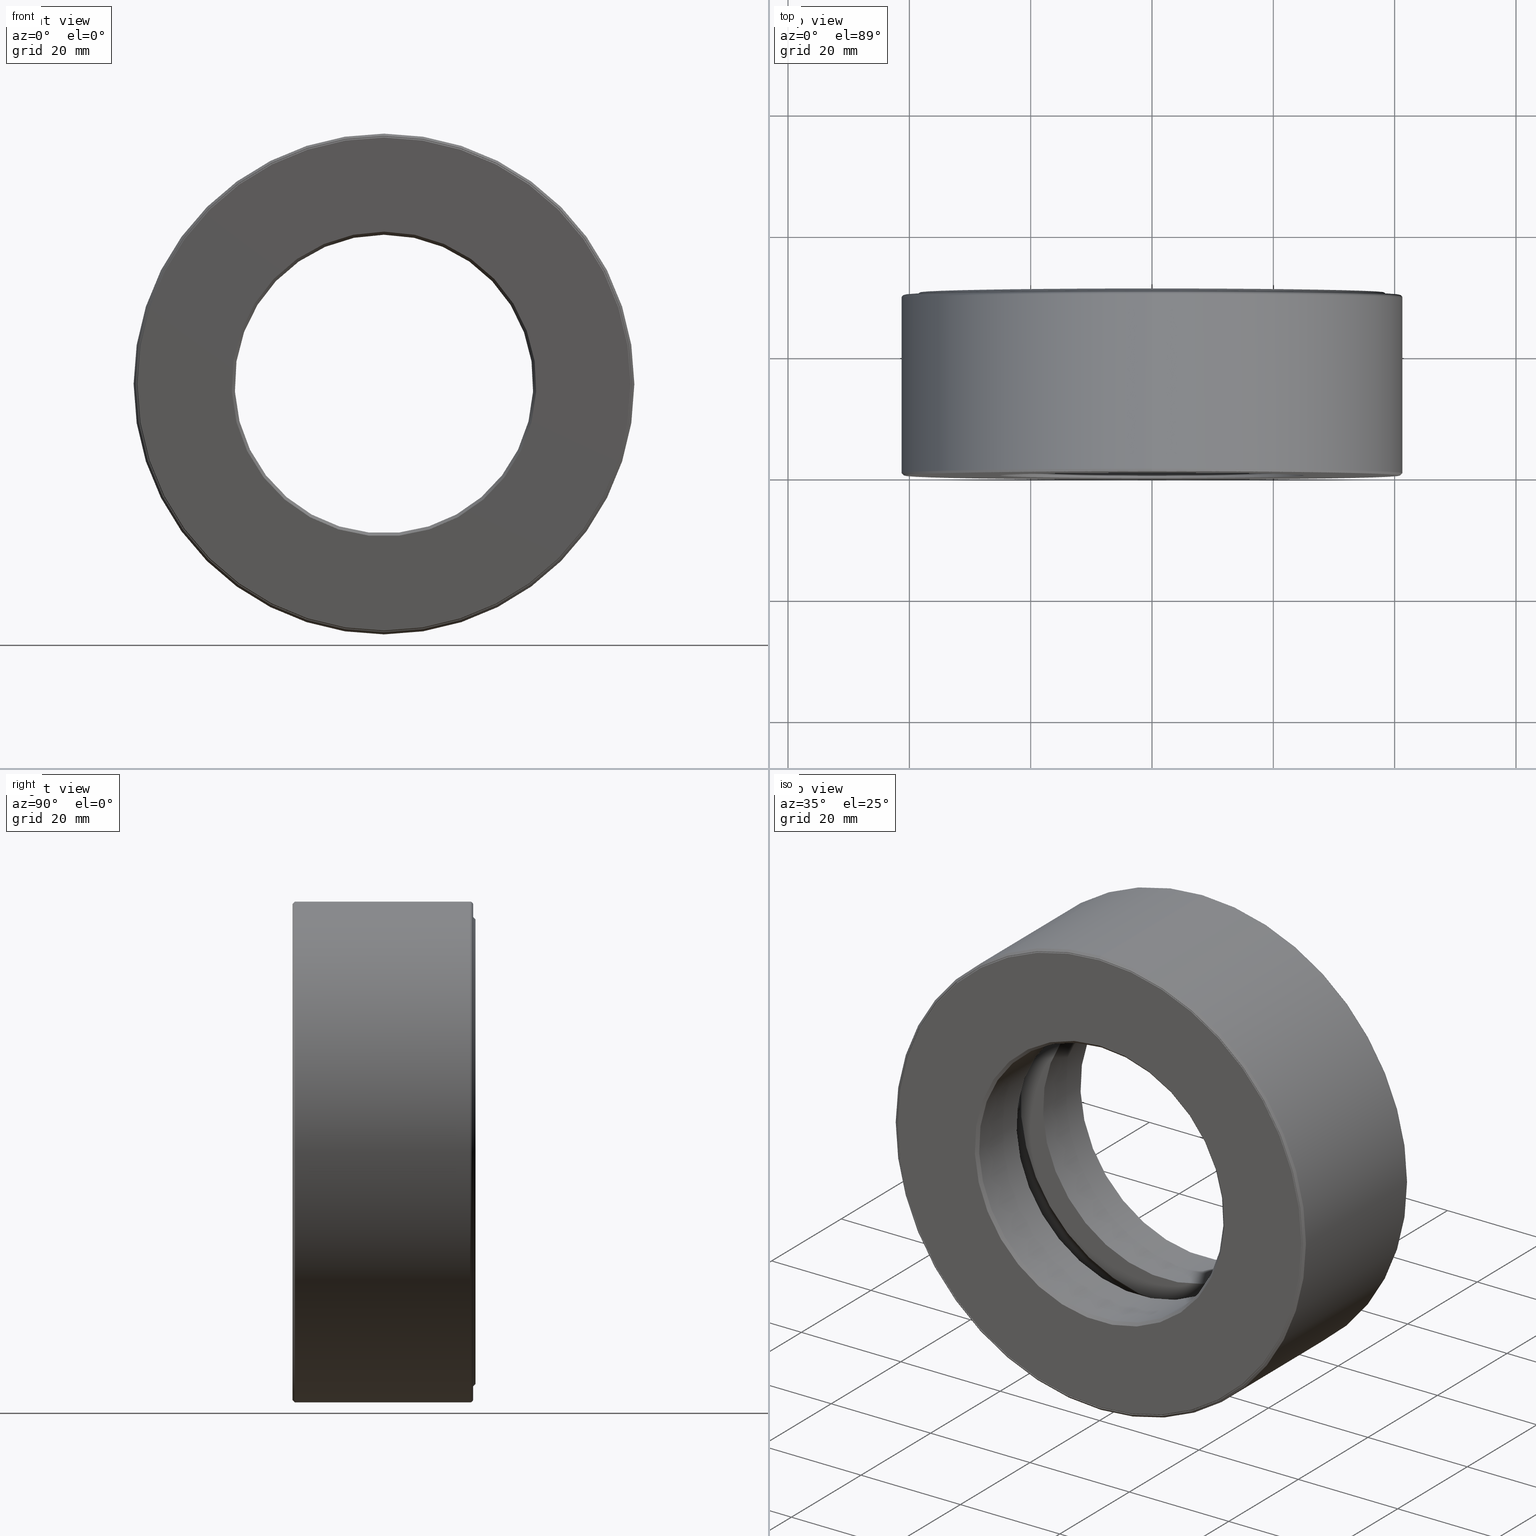
[diagram: canonical four-view strip — front | top / right | iso, engineering-drawing reading convention]
A machine part, canonical four-view strip (front | top / right | iso — engineering-drawing reading convention). The complete STEP part file that produces these views, byte-faithful:
ISO-10303-21;
HEADER;
FILE_DESCRIPTION (( 'STEP AP203' ),
    '1' );
FILE_NAME ('T-100-37.step',
    '2016-06-29T18:27:34',
    ( '' ),
    ( '' ),
    'SwSTEP 2.0',
    'SolidWorks 2016',
    '' );
FILE_SCHEMA (( 'CONFIG_CONTROL_DESIGN' ));
ENDSEC;

DATA;
#1 = DIMENSIONAL_EXPONENTS ( 1.000000000000000000, 0.0000000000000000000, 0.0000000000000000000, 0.0000000000000000000, 0.0000000000000000000, 0.0000000000000000000, 0.0000000000000000000 ) ;
#2 = MANIFOLD_SOLID_BREP ( 'Revolve2[1]', #224 ) ;
#3 = APPROVAL_DATE_TIME ( #113, #390 ) ;
#4 = DIRECTION ( 'NONE',  ( 0.0000000000000000000, 0.0000000000000000000, 1.000000000000000000 ) ) ;
#5 = DIRECTION ( 'NONE',  ( 0.0000000000000000000, 0.0000000000000000000, 1.000000000000000000 ) ) ;
#6 = EDGE_CURVE ( 'NONE', #340, #340, #236, .T. ) ;
#7 = ORIENTED_EDGE ( 'NONE', *, *, #507, .T. ) ;
#8 = CARTESIAN_POINT ( 'NONE',  ( 4.699533882082857200E-015, 0.5937500000000000000, 1.346000000000000100 ) ) ;
#9 = AXIS2_PLACEMENT_3D ( 'NONE', #125, #42, #81 ) ;
#10 = APPROVAL_DATE_TIME ( #126, #34 ) ;
#11 = FACE_OUTER_BOUND ( 'NONE', #568, .T. ) ;
#12 = EDGE_LOOP ( 'NONE', ( #604 ) ) ;
#13 = FACE_OUTER_BOUND ( 'NONE', #271, .T. ) ;
#14 = CARTESIAN_POINT ( 'NONE',  ( 0.0000000000000000000, 1.152499999999999900, 1.605000000000000000 ) ) ;
#15 = ADVANCED_FACE ( 'NONE', ( #284, #84 ), #569, .F. ) ;
#16 = CC_DESIGN_DATE_AND_TIME_ASSIGNMENT ( #190, #437, ( #90 ) ) ;
#17 = EDGE_LOOP ( 'NONE', ( #297 ) ) ;
#18 = CIRCLE ( 'NONE', #443, 1.598000000000000100 ) ;
#19 = CLOSED_SHELL ( 'NONE', ( #483, #261, #459, #269, #403, #374, #43, #351 ) ) ;
#20 = SECURITY_CLASSIFICATION_LEVEL ( 'unclassified' ) ;
#21 = CARTESIAN_POINT ( 'NONE',  ( 0.0000000000000000000, -8.750450604705842700E-017, 0.0000000000000000000 ) ) ;
#22 = AXIS2_PLACEMENT_3D ( 'NONE', #247, #209, #438 ) ;
#23 = COORDINATED_UNIVERSAL_TIME_OFFSET ( 5, 0, .BEHIND. ) ;
#24 = EDGE_LOOP ( 'NONE', ( #377 ) ) ;
#25 = ORIENTED_EDGE ( 'NONE', *, *, #145, .F. ) ;
#26 = CIRCLE ( 'NONE', #22, 0.9687500000000001100 ) ;
#27 = EDGE_LOOP ( 'NONE', ( #7 ) ) ;
#28 = DIRECTION ( 'NONE',  ( 0.0000000000000000000, -1.000000000000000000, 0.0000000000000000000 ) ) ;
#29 = FACE_BOUND ( 'NONE', #172, .T. ) ;
#30 = ORIENTED_EDGE ( 'NONE', *, *, #556, .T. ) ;
#31 = EDGE_CURVE ( 'NONE', #479, #479, #551, .T. ) ;
#32 = DIRECTION ( 'NONE',  ( 0.0000000000000000000, 0.0000000000000000000, 1.000000000000000000 ) ) ;
#33 = DIRECTION ( 'NONE',  ( 0.0000000000000000000, 0.0000000000000000000, 1.000000000000000000 ) ) ;
#34 = APPROVAL ( #538, 'UNSPECIFIED' ) ;
#35 = ORGANIZATION ( 'UNSPECIFIED', 'UNSPECIFIED', '' ) ;
#36 = DIRECTION ( 'NONE',  ( 0.0000000000000000000, 0.0000000000000000000, 1.000000000000000000 ) ) ;
#37 = ADVANCED_FACE ( 'NONE', ( #348, #574 ), #498, .F. ) ;
#38 = DIRECTION ( 'NONE',  ( 0.0000000000000000000, -1.000000000000000000, 0.0000000000000000000 ) ) ;
#39 = FACE_OUTER_BOUND ( 'NONE', #548, .T. ) ;
#40 = ORIENTED_EDGE ( 'NONE', *, *, #231, .T. ) ;
#41 = SPHERICAL_SURFACE ( 'NONE', #405, 0.2500000000000000600 ) ;
#42 = DIRECTION ( 'NONE',  ( -0.0000000000000000000, 1.000000000000000000, 0.0000000000000000000 ) ) ;
#43 = ADVANCED_FACE ( 'NONE', ( #237, #66 ), #160, .T. ) ;
#44 = CARTESIAN_POINT ( 'NONE',  ( 0.0000000000000000000, 1.187500000000000000, 1.509999999999999800 ) ) ;
#45 = DIRECTION ( 'NONE',  ( -1.000000000000000000, 0.0000000000000000000, 3.491481338843134500E-015 ) ) ;
#46 = CARTESIAN_POINT ( 'NONE',  ( 0.0000000000000000000, 0.7437500000000001300, 0.0000000000000000000 ) ) ;
#47 = CARTESIAN_POINT ( 'NONE',  ( 0.0000000000000000000, 1.099499999999999900, 1.598000000000000100 ) ) ;
#48 = EDGE_LOOP ( 'NONE', ( #382 ) ) ;
#49 = CIRCLE ( 'NONE', #314, 0.9687500000000000000 ) ;
#50 = DIRECTION ( 'NONE',  ( -0.0000000000000000000, 1.000000000000000000, -0.0000000000000000000 ) ) ;
#51 = AXIS2_PLACEMENT_3D ( 'NONE', #596, #222, #408 ) ;
#52 = EDGE_LOOP ( 'NONE', ( #542 ) ) ;
#53 = EDGE_LOOP ( 'NONE', ( #411 ) ) ;
#54 = FACE_OUTER_BOUND ( 'NONE', #448, .T. ) ;
#55 = DIRECTION ( 'NONE',  ( -0.0000000000000000000, 1.000000000000000000, -0.0000000000000000000 ) ) ;
#56 = CARTESIAN_POINT ( 'NONE',  ( 0.0000000000000000000, -8.694983911032602800E-017, 0.0000000000000000000 ) ) ;
#57 = DIRECTION ( 'NONE',  ( 0.0000000000000000000, 0.0000000000000000000, 1.000000000000000000 ) ) ;
#58 = AXIS2_PLACEMENT_3D ( 'NONE', #273, #485, #241 ) ;
#59 = ORIENTED_EDGE ( 'NONE', *, *, #599, .F. ) ;
#60 = CIRCLE ( 'NONE', #157, 1.605000000000000000 ) ;
#61 = EDGE_CURVE ( 'NONE', #467, #467, #130, .T. ) ;
#62 = LOCAL_TIME ( 14, 27, 34.00000000000000000, #23 ) ;
#63 = CC_DESIGN_PERSON_AND_ORGANIZATION_ASSIGNMENT ( #354, #107, ( #270 ) ) ;
#64 = ORIENTED_EDGE ( 'NONE', *, *, #325, .T. ) ;
#65 = EDGE_LOOP ( 'NONE', ( #503 ) ) ;
#66 = FACE_BOUND ( 'NONE', #420, .T. ) ;
#67 = CARTESIAN_POINT ( 'NONE',  ( 0.0000000000000000000, -8.643737792453333200E-017, 0.0000000000000000000 ) ) ;
#68 = ORIENTED_EDGE ( 'NONE', *, *, #556, .F. ) ;
#69 = CONICAL_SURFACE ( 'NONE', #281, 1.599999999999999600, 0.7853981633974335100 ) ;
#70 = DIRECTION ( 'NONE',  ( 0.0000000000000000000, 0.0000000000000000000, 1.000000000000000000 ) ) ;
#71 = CARTESIAN_POINT ( 'NONE',  ( 0.0000000000000000000, 1.172499999999999900, 0.0000000000000000000 ) ) ;
#72 = DIRECTION ( 'NONE',  ( 0.0000000000000000000, 0.0000000000000000000, 1.000000000000000000 ) ) ;
#73 = ADVANCED_FACE ( 'NONE', ( #13, #101 ), #429, .F. ) ;
#74 = COORDINATED_UNIVERSAL_TIME_OFFSET ( 5, 0, .BEHIND. ) ;
#75 = EDGE_LOOP ( 'NONE', ( #234 ) ) ;
#76 = CARTESIAN_POINT ( 'NONE',  ( 0.0000000000000000000, 6.829619984160658000E-017, 0.0000000000000000000 ) ) ;
#77 = EDGE_LOOP ( 'NONE', ( #369 ) ) ;
#78 = CIRCLE ( 'NONE', #51, 1.545999999999999800 ) ;
#79 = AXIS2_PLACEMENT_3D ( 'NONE', #505, #531, #201 ) ;
#80 = CARTESIAN_POINT ( 'NONE',  ( 0.0000000000000000000, 0.4437499999999998700, 0.0000000000000000000 ) ) ;
#81 = DIRECTION ( 'NONE',  ( 0.0000000000000000000, 0.0000000000000000000, 1.000000000000000000 ) ) ;
#82 = EDGE_CURVE ( 'NONE', #589, #589, #383, .T. ) ;
#83 =( CONVERSION_BASED_UNIT ( 'INCH', #196 ) LENGTH_UNIT ( ) NAMED_UNIT ( #1 ) );
#84 = FACE_OUTER_BOUND ( 'NONE', #106, .T. ) ;
#85 = ORIENTED_EDGE ( 'NONE', *, *, #545, .F. ) ;
#86 = FACE_OUTER_BOUND ( 'NONE', #358, .T. ) ;
#87 = MANIFOLD_SOLID_BREP ( 'Revolve3', #239 ) ;
#88 = DIRECTION ( 'NONE',  ( 0.0000000000000000000, 0.0000000000000000000, 1.000000000000000000 ) ) ;
#89 = VERTEX_POINT ( 'NONE', #133 ) ;
#90 = PRODUCT_DEFINITION ( 'UNKNOWN', '', #183, #465 ) ;
#91 = ADVANCED_FACE ( 'NONE', ( #39, #540 ), #337, .F. ) ;
#92 = DIRECTION ( 'NONE',  ( -0.0000000000000000000, 1.000000000000000000, -0.0000000000000000000 ) ) ;
#93 = EDGE_CURVE ( 'NONE', #285, #285, #78, .T. ) ;
#94 = LOCAL_TIME ( 14, 27, 34.00000000000000000, #74 ) ;
#95 = DIRECTION ( 'NONE',  ( 0.0000000000000000000, 0.0000000000000000000, 1.000000000000000000 ) ) ;
#96 = CARTESIAN_POINT ( 'NONE',  ( 0.0000000000000000000, 0.0000000000000000000, 0.0000000000000000000 ) ) ;
#97 = ORIENTED_EDGE ( 'NONE', *, *, #105, .T. ) ;
#98 = CC_DESIGN_APPROVAL ( #329, ( #270 ) ) ;
#99 = COORDINATED_UNIVERSAL_TIME_OFFSET ( 5, 0, .BEHIND. ) ;
#100 = CARTESIAN_POINT ( 'NONE',  ( 0.0000000000000000000, 0.005000000000000418200, 0.0000000000000000000 ) ) ;
#101 = FACE_OUTER_BOUND ( 'NONE', #254, .T. ) ;
#102 = EDGE_LOOP ( 'NONE', ( #533 ) ) ;
#103 = VERTEX_POINT ( 'NONE', #468 ) ;
#104 = CARTESIAN_POINT ( 'NONE',  ( 0.0000000000000000000, 0.7437500000000001300, 1.146000000000000400 ) ) ;
#105 = EDGE_CURVE ( 'NONE', #515, #515, #111, .T. ) ;
#106 = EDGE_LOOP ( 'NONE', ( #143 ) ) ;
#107 = PERSON_AND_ORGANIZATION_ROLE ( 'classification_officer' ) ;
#108 = AXIS2_PLACEMENT_3D ( 'NONE', #186, #188, #167 ) ;
#109 = CARTESIAN_POINT ( 'NONE',  ( 0.0000000000000000000, 1.152499999999999900, 0.0000000000000000000 ) ) ;
#110 = FACE_OUTER_BOUND ( 'NONE', #524, .T. ) ;
#111 = CIRCLE ( 'NONE', #252, 1.545999999999999800 ) ;
#112 = CC_DESIGN_APPROVAL ( #34, ( #90 ) ) ;
#113 = DATE_AND_TIME ( #527, #62 ) ;
#114 = PLANE ( 'NONE',  #79 ) ;
#115 = DIRECTION ( 'NONE',  ( 0.0000000000000000000, 0.0000000000000000000, 1.000000000000000000 ) ) ;
#116 = ORIENTED_EDGE ( 'NONE', *, *, #289, .T. ) ;
#117 = EDGE_LOOP ( 'NONE', ( #342 ) ) ;
#118 = DIRECTION ( 'NONE',  ( -0.0000000000000000000, 1.000000000000000000, -0.0000000000000000000 ) ) ;
#119 = DIRECTION ( 'NONE',  ( 0.0000000000000000000, -0.0000000000000000000, -1.000000000000000000 ) ) ;
#120 = DIRECTION ( 'NONE',  ( -0.0000000000000000000, 1.000000000000000000, -0.0000000000000000000 ) ) ;
#121 = DIRECTION ( 'NONE',  ( -0.0000000000000000000, 1.000000000000000000, -0.0000000000000000000 ) ) ;
#122 = PLANE ( 'NONE',  #446 ) ;
#123 = AXIS2_PLACEMENT_3D ( 'NONE', #175, #262, #33 ) ;
#124 = PRODUCT_DEFINITION_SHAPE ( 'NONE', 'NONE',  #90 ) ;
#125 = CARTESIAN_POINT ( 'NONE',  ( -1.977206003405029600E-032, -9.070589041463374400E-018, 0.0000000000000000000 ) ) ;
#126 = DATE_AND_TIME ( #334, #427 ) ;
#127 = CARTESIAN_POINT ( 'NONE',  ( 0.0000000000000000000, 0.5937500000000000000, 0.0000000000000000000 ) ) ;
#128 = FACE_BOUND ( 'NONE', #192, .T. ) ;
#129 = DIRECTION ( 'NONE',  ( 0.0000000000000000000, -1.000000000000000000, 0.0000000000000000000 ) ) ;
#130 = CIRCLE ( 'NONE', #587, 1.624999999999999800 ) ;
#131 = CARTESIAN_POINT ( 'NONE',  ( 0.0000000000000000000, 1.152499999999999900, 1.625000000000000000 ) ) ;
#132 = DIRECTION ( 'NONE',  ( -0.0000000000000000000, 1.000000000000000000, -0.0000000000000000000 ) ) ;
#133 = CARTESIAN_POINT ( 'NONE',  ( 0.0000000000000000000, 0.4437499999999998700, 1.146000000000000400 ) ) ;
#134 = DIRECTION ( 'NONE',  ( 1.000000000000000000, 0.0000000000000000000, 0.0000000000000000000 ) ) ;
#135 = EDGE_CURVE ( 'NONE', #525, #525, #298, .T. ) ;
#136 = CARTESIAN_POINT ( 'NONE',  ( 0.0000000000000000000, 6.829619984160658000E-017, 0.9887500000000002400 ) ) ;
#137 = ADVANCED_FACE ( 'NONE', ( ), #41, .T. ) ;
#138 = EDGE_LOOP ( 'NONE', ( #332 ) ) ;
#139 = TOROIDAL_SURFACE ( 'NONE', #484, 1.605000000000000000, 0.02000000000000005900 ) ;
#140 = CARTESIAN_POINT ( 'NONE',  ( 0.0000000000000000000, 0.4437499999999997600, 0.0000000000000000000 ) ) ;
#141 = PERSON_AND_ORGANIZATION ( #230, #35 ) ;
#142 = CIRCLE ( 'NONE', #345, 1.610000000000000100 ) ;
#143 = ORIENTED_EDGE ( 'NONE', *, *, #386, .T. ) ;
#144 = CYLINDRICAL_SURFACE ( 'NONE', #453, 0.9687500000000001100 ) ;
#145 = EDGE_CURVE ( 'NONE', #242, #242, #529, .T. ) ;
#146 = DIRECTION ( 'NONE',  ( -0.0000000000000000000, 1.000000000000000000, -0.0000000000000000000 ) ) ;
#147 = CARTESIAN_POINT ( 'NONE',  ( 0.0000000000000000000, 1.172499999999999900, 1.545000000000000200 ) ) ;
#148 = CC_DESIGN_PERSON_AND_ORGANIZATION_ASSIGNMENT ( #156, #393, ( #90 ) ) ;
#149 = MANIFOLD_SOLID_BREP ( 'BALLS[2]', #287 ) ;
#150 = MECHANICAL_CONTEXT ( 'NONE', #244, 'mechanical' ) ;
#151 = ORIENTED_EDGE ( 'NONE', *, *, #545, .T. ) ;
#152 = FACE_OUTER_BOUND ( 'NONE', #402, .T. ) ;
#153 = ORIENTED_EDGE ( 'NONE', *, *, #500, .T. ) ;
#154 = AXIS2_PLACEMENT_3D ( 'NONE', #227, #92, #422 ) ;
#155 = APPROVAL_STATUS ( 'not_yet_approved' ) ;
#156 = PERSON_AND_ORGANIZATION ( #230, #35 ) ;
#157 = AXIS2_PLACEMENT_3D ( 'NONE', #56, #562, #324 ) ;
#158 = FACE_OUTER_BOUND ( 'NONE', #440, .T. ) ;
#159 = ORIENTED_EDGE ( 'NONE', *, *, #82, .F. ) ;
#160 = CONICAL_SURFACE ( 'NONE', #189, 1.509999999999999800, 0.7853981633974490600 ) ;
#161 = VERTEX_POINT ( 'NONE', #603 ) ;
#162 = DIRECTION ( 'NONE',  ( 0.0000000000000000000, -0.0000000000000000000, -1.000000000000000000 ) ) ;
#163 = AXIS2_PLACEMENT_3D ( 'NONE', #127, #121, #36 ) ;
#164 = EDGE_LOOP ( 'NONE', ( #511 ) ) ;
#165 = CONICAL_SURFACE ( 'NONE', #570, 0.9687500000000001100, 0.7853981633974415100 ) ;
#166 = DIRECTION ( 'NONE',  ( -0.0000000000000000000, 1.000000000000000000, -0.0000000000000000000 ) ) ;
#167 = DIRECTION ( 'NONE',  ( 0.0000000000000000000, 0.0000000000000000000, 1.000000000000000000 ) ) ;
#168 = AXIS2_PLACEMENT_3D ( 'NONE', #424, #346, #590 ) ;
#169 = DIRECTION ( 'NONE',  ( 0.0000000000000000000, -1.000000000000000000, 0.0000000000000000000 ) ) ;
#170 = DIRECTION ( 'NONE',  ( 0.0000000000000000000, 0.0000000000000000000, 1.000000000000000000 ) ) ;
#171 = PLANE ( 'NONE',  #476 ) ;
#172 = EDGE_LOOP ( 'NONE', ( #97 ) ) ;
#173 = EDGE_LOOP ( 'NONE', ( #40 ) ) ;
#174 = FACE_BOUND ( 'NONE', #17, .T. ) ;
#175 = CARTESIAN_POINT ( 'NONE',  ( 0.0000000000000000000, 0.7437500000000001300, 0.0000000000000000000 ) ) ;
#176 = CARTESIAN_POINT ( 'NONE',  ( 0.0000000000000000000, 1.187500000000000000, 0.0000000000000000000 ) ) ;
#177 = AXIS2_PLACEMENT_3D ( 'NONE', #243, #169, #326 ) ;
#178 = DIRECTION ( 'NONE',  ( 0.0000000000000000000, 0.0000000000000000000, -1.000000000000000000 ) ) ;
#179 = CARTESIAN_POINT ( 'NONE',  ( 0.0000000000000000000, 0.4437499999999997600, 1.545999999999999800 ) ) ;
#180 = PLANE ( 'NONE',  #526 ) ;
#181 = ADVANCED_FACE ( 'NONE', ( #370, #174 ), #114, .F. ) ;
#182 = DIRECTION ( 'NONE',  ( 0.0000000000000000000, -1.000000000000000000, 0.0000000000000000000 ) ) ;
#183 = PRODUCT_DEFINITION_FORMATION_WITH_SPECIFIED_SOURCE ( 'ANY', '', #256, .NOT_KNOWN. ) ;
#184 = ORIENTED_EDGE ( 'NONE', *, *, #231, .F. ) ;
#185 = CIRCLE ( 'NONE', #123, 1.146000000000000400 ) ;
#186 = CARTESIAN_POINT ( 'NONE',  ( 0.0000000000000000000, 1.099499999999999900, 0.0000000000000000000 ) ) ;
#187 = CARTESIAN_POINT ( 'NONE',  ( 0.0000000000000000000, 1.152499999999999900, 1.545000000000000200 ) ) ;
#188 = DIRECTION ( 'NONE',  ( -0.0000000000000000000, 1.000000000000000000, -0.0000000000000000000 ) ) ;
#189 = AXIS2_PLACEMENT_3D ( 'NONE', #461, #552, #178 ) ;
#190 = DATE_AND_TIME ( #293, #279 ) ;
#191 = EDGE_LOOP ( 'NONE', ( #349 ) ) ;
#192 = EDGE_LOOP ( 'NONE', ( #25 ) ) ;
#193 = ORIENTED_EDGE ( 'NONE', *, *, #500, .F. ) ;
#194 = CC_DESIGN_PERSON_AND_ORGANIZATION_ASSIGNMENT ( #547, #385, ( #256 ) ) ;
#195 = CARTESIAN_POINT ( 'NONE',  ( 0.0000000000000000000, -8.643737792453333200E-017, 1.599999999999999600 ) ) ;
#196 = LENGTH_MEASURE_WITH_UNIT ( LENGTH_MEASURE( 0.02539999999999999900 ), #316 );
#197 = CARTESIAN_POINT ( 'NONE',  ( 0.0000000000000000000, -8.694983911032602800E-017, 1.605000000000000000 ) ) ;
#198 = FACE_BOUND ( 'NONE', #138, .T. ) ;
#199 = EDGE_LOOP ( 'NONE', ( #193 ) ) ;
#200 = CIRCLE ( 'NONE', #359, 0.9687500000000001100 ) ;
#201 = DIRECTION ( 'NONE',  ( 0.0000000000000000000, 0.0000000000000000000, 1.000000000000000000 ) ) ;
#202 = AXIS2_PLACEMENT_3D ( 'NONE', #555, #373, #321 ) ;
#203 = APPLICATION_PROTOCOL_DEFINITION ( 'international standard', 'config_control_design', 1994, #439 ) ;
#204 = ADVANCED_FACE ( 'NONE', ( #396, #249 ), #571, .F. ) ;
#205 = ORIENTED_EDGE ( 'NONE', *, *, #105, .F. ) ;
#206 = APPLICATION_PROTOCOL_DEFINITION ( 'international standard', 'config_control_design', 1994, #244 ) ;
#207 = CLOSED_SHELL ( 'NONE', ( #219 ) ) ;
#208 = AXIS2_PLACEMENT_3D ( 'NONE', #469, #519, #229 ) ;
#209 = DIRECTION ( 'NONE',  ( -0.0000000000000000000, 1.000000000000000000, -0.0000000000000000000 ) ) ;
#210 = CYLINDRICAL_SURFACE ( 'NONE', #595, 1.624999999999999800 ) ;
#211 = EDGE_LOOP ( 'NONE', ( #68 ) ) ;
#212 = CONICAL_SURFACE ( 'NONE', #233, 0.9687500000000000000, 0.7853981633974431700 ) ;
#213 = CC_DESIGN_APPROVAL ( #390, ( #183 ) ) ;
#214 = DIRECTION ( 'NONE',  ( 0.0000000000000000000, 0.0000000000000000000, 1.000000000000000000 ) ) ;
#215 = VERTEX_POINT ( 'NONE', #187 ) ;
#216 = ADVANCED_FACE ( 'NONE', ( ), #528, .T. ) ;
#217 = AXIS2_PLACEMENT_3D ( 'NONE', #470, #333, #406 ) ;
#218 = EDGE_LOOP ( 'NONE', ( #395 ) ) ;
#219 = ADVANCED_FACE ( 'NONE', ( ), #442, .T. ) ;
#220 = DIRECTION ( 'NONE',  ( -0.0000000000000000000, 1.000000000000000000, -0.0000000000000000000 ) ) ;
#221 = VERTEX_POINT ( 'NONE', #197 ) ;
#222 = DIRECTION ( 'NONE',  ( -0.0000000000000000000, 1.000000000000000000, -0.0000000000000000000 ) ) ;
#223 = CIRCLE ( 'NONE', #245, 1.605000000000000000 ) ;
#224 = CLOSED_SHELL ( 'NONE', ( #73, #364, #317, #181, #15, #204, #508, #258, #516, #602, #37, #501, #480, #414, #91, #458 ) ) ;
#225 = FACE_BOUND ( 'NONE', #24, .T. ) ;
#226 = CARTESIAN_POINT ( 'NONE',  ( -1.010132666352421300E-032, -8.722717257869222100E-017, 0.0000000000000000000 ) ) ;
#227 = CARTESIAN_POINT ( 'NONE',  ( 0.0000000000000000000, 1.152499999999999900, 0.0000000000000000000 ) ) ;
#228 = CARTESIAN_POINT ( 'NONE',  ( 0.0000000000000000000, 0.7437500000000001300, 1.598000000000000100 ) ) ;
#229 = DIRECTION ( 'NONE',  ( -1.000000000000000000, 0.0000000000000000000, 6.982962677686269100E-015 ) ) ;
#230 = PERSON ( 'UNSPECIFIED', 'UNSPECIFIED', 'UNSPECIFIED', ('UNSPECIFIED'), ('UNSPECIFIED'), ('UNSPECIFIED') ) ;
#231 = EDGE_CURVE ( 'NONE', #360, #360, #584, .T. ) ;
#232 = VERTEX_POINT ( 'NONE', #228 ) ;
#233 = AXIS2_PLACEMENT_3D ( 'NONE', #367, #315, #506 ) ;
#234 = ORIENTED_EDGE ( 'NONE', *, *, #532, .F. ) ;
#235 = ORIENTED_EDGE ( 'NONE', *, *, #343, .F. ) ;
#236 = CIRCLE ( 'NONE', #154, 1.625000000000000000 ) ;
#237 = FACE_OUTER_BOUND ( 'NONE', #218, .T. ) ;
#238 = CC_DESIGN_PERSON_AND_ORGANIZATION_ASSIGNMENT ( #489, #290, ( #183 ) ) ;
#239 = CLOSED_SHELL ( 'NONE', ( #216 ) ) ;
#240 = AXIS2_PLACEMENT_3D ( 'NONE', #71, #118, #32 ) ;
#241 = DIRECTION ( 'NONE',  ( 1.000000000000000000, 0.0000000000000000000, 0.0000000000000000000 ) ) ;
#242 = VERTEX_POINT ( 'NONE', #518 ) ;
#243 = CARTESIAN_POINT ( 'NONE',  ( 0.0000000000000000000, 1.172499999999999900, 0.0000000000000000000 ) ) ;
#244 = APPLICATION_CONTEXT ( 'configuration controlled 3d designs of mechanical parts and assemblies' ) ;
#245 = AXIS2_PLACEMENT_3D ( 'NONE', #140, #278, #379 ) ;
#246 = APPROVAL_DATE_TIME ( #580, #329 ) ;
#247 = CARTESIAN_POINT ( 'NONE',  ( 0.0000000000000000000, 0.7437500000000001300, 0.0000000000000000000 ) ) ;
#248 = CYLINDRICAL_SURFACE ( 'NONE', #380, 1.605000000000000000 ) ;
#249 = FACE_OUTER_BOUND ( 'NONE', #400, .T. ) ;
#250 = CARTESIAN_POINT ( 'NONE',  ( 0.0000000000000000000, 1.172499999999999900, 0.0000000000000000000 ) ) ;
#251 = DIRECTION ( 'NONE',  ( -0.0000000000000000000, 1.000000000000000000, -0.0000000000000000000 ) ) ;
#252 = AXIS2_PLACEMENT_3D ( 'NONE', #259, #120, #600 ) ;
#253 = DIRECTION ( 'NONE',  ( -0.0000000000000000000, 1.000000000000000000, -0.0000000000000000000 ) ) ;
#254 = EDGE_LOOP ( 'NONE', ( #274 ) ) ;
#255 = CIRCLE ( 'NONE', #413, 1.509999999999999800 ) ;
#256 = PRODUCT ( 'T-100-37', 'T-100-37', '', ( #150 ) ) ;
#257 = AXIS2_PLACEMENT_3D ( 'NONE', #353, #404, #214 ) ;
#258 = ADVANCED_FACE ( 'NONE', ( #409, #394 ), #210, .T. ) ;
#259 = CARTESIAN_POINT ( 'NONE',  ( 0.0000000000000000000, 0.7437500000000001300, 0.0000000000000000000 ) ) ;
#260 = DIRECTION ( 'NONE',  ( 0.0000000000000000000, 0.0000000000000000000, 1.000000000000000000 ) ) ;
#261 = ADVANCED_FACE ( 'NONE', ( #54, #110 ), #605, .F. ) ;
#262 = DIRECTION ( 'NONE',  ( -0.0000000000000000000, 1.000000000000000000, -0.0000000000000000000 ) ) ;
#263 = DIRECTION ( 'NONE',  ( -0.0000000000000000000, 1.000000000000000000, -0.0000000000000000000 ) ) ;
#264 = FACE_OUTER_BOUND ( 'NONE', #466, .T. ) ;
#265 = ADVANCED_FACE ( 'NONE', ( ), #311, .T. ) ;
#266 = ORIENTED_EDGE ( 'NONE', *, *, #578, .F. ) ;
#267 = FACE_OUTER_BOUND ( 'NONE', #492, .T. ) ;
#268 = CARTESIAN_POINT ( 'NONE',  ( 0.0000000000000000000, 1.152499999999999900, 0.0000000000000000000 ) ) ;
#269 = ADVANCED_FACE ( 'NONE', ( #267, #282 ), #144, .F. ) ;
#270 = SECURITY_CLASSIFICATION ( '', '', #20 ) ;
#271 = EDGE_LOOP ( 'NONE', ( #303 ) ) ;
#272 = FACE_OUTER_BOUND ( 'NONE', #535, .T. ) ;
#273 = CARTESIAN_POINT ( 'NONE',  ( 0.0000000000000000000, 0.0000000000000000000, 0.0000000000000000000 ) ) ;
#274 = ORIENTED_EDGE ( 'NONE', *, *, #93, .T. ) ;
#275 = DIRECTION ( 'NONE',  ( 0.0000000000000000000, 0.0000000000000000000, 1.000000000000000000 ) ) ;
#276 = CARTESIAN_POINT ( 'NONE',  ( -1.346000000000000100, 0.5937500000000000000, 0.0000000000000000000 ) ) ;
#277 = AXIS2_PLACEMENT_3D ( 'NONE', #560, #50, #425 ) ;
#278 = DIRECTION ( 'NONE',  ( -0.0000000000000000000, 1.000000000000000000, -0.0000000000000000000 ) ) ;
#279 = LOCAL_TIME ( 14, 27, 34.00000000000000000, #565 ) ;
#280 = CARTESIAN_POINT ( 'NONE',  ( 0.0000000000000000000, 0.0000000000000000000, 0.0000000000000000000 ) ) ;
#281 = AXIS2_PLACEMENT_3D ( 'NONE', #452, #220, #260 ) ;
#282 = FACE_OUTER_BOUND ( 'NONE', #322, .T. ) ;
#283 = ORIENTED_EDGE ( 'NONE', *, *, #309, .F. ) ;
#284 = FACE_OUTER_BOUND ( 'NONE', #417, .T. ) ;
#285 = VERTEX_POINT ( 'NONE', #179 ) ;
#286 = DIRECTION ( 'NONE',  ( -0.0000000000000000000, 1.000000000000000000, -0.0000000000000000000 ) ) ;
#287 = CLOSED_SHELL ( 'NONE', ( #265 ) ) ;
#288 = FACE_OUTER_BOUND ( 'NONE', #102, .T. ) ;
#289 = EDGE_CURVE ( 'NONE', #582, #582, #462, .T. ) ;
#290 = PERSON_AND_ORGANIZATION_ROLE ( 'creator' ) ;
#291 = CARTESIAN_POINT ( 'NONE',  ( 0.0000000000000000000, 1.187500000000000000, 0.0000000000000000000 ) ) ;
#292 = CC_DESIGN_PERSON_AND_ORGANIZATION_ASSIGNMENT ( #141, #495, ( #183 ) ) ;
#293 = CALENDAR_DATE ( 2016, 29, 6 ) ;
#294 = DIRECTION ( 'NONE',  ( -0.0000000000000000000, 1.000000000000000000, -0.0000000000000000000 ) ) ;
#295 = DIRECTION ( 'NONE',  ( 0.0000000000000000000, 0.0000000000000000000, 1.000000000000000000 ) ) ;
#296 = EDGE_LOOP ( 'NONE', ( #184 ) ) ;
#297 = ORIENTED_EDGE ( 'NONE', *, *, #567, .T. ) ;
#298 = CIRCLE ( 'NONE', #240, 1.605000000000000000 ) ;
#299 = AXIS2_PLACEMENT_3D ( 'NONE', #306, #445, #301 ) ;
#300 = APPROVAL_PERSON_ORGANIZATION ( #496, #390, #494 ) ;
#301 = DIRECTION ( 'NONE',  ( 0.0000000000000000000, 0.0000000000000000000, 1.000000000000000000 ) ) ;
#302 = DIRECTION ( 'NONE',  ( -0.0000000000000000000, 1.000000000000000000, -0.0000000000000000000 ) ) ;
#303 = ORIENTED_EDGE ( 'NONE', *, *, #451, .F. ) ;
#304 = CIRCLE ( 'NONE', #305, 1.605000000000000000 ) ;
#305 = AXIS2_PLACEMENT_3D ( 'NONE', #100, #336, #520 ) ;
#306 = CARTESIAN_POINT ( 'NONE',  ( 0.0000000000000000000, 0.0000000000000000000, 0.0000000000000000000 ) ) ;
#307 = DIRECTION ( 'NONE',  ( 0.0000000000000000000, 0.0000000000000000000, 1.000000000000000000 ) ) ;
#308 = DIRECTION ( 'NONE',  ( 1.000000000000000000, 0.0000000000000000000, -1.047444401652940000E-014 ) ) ;
#309 = EDGE_CURVE ( 'NONE', #161, #161, #26, .T. ) ;
#310 = ORIENTED_EDGE ( 'NONE', *, *, #567, .F. ) ;
#311 = SPHERICAL_SURFACE ( 'NONE', #208, 0.2500000000000000600 ) ;
#312 = DIRECTION ( 'NONE',  ( 0.0000000000000000000, 0.0000000000000000000, 1.000000000000000000 ) ) ;
#313 = CARTESIAN_POINT ( 'NONE',  ( 0.0000000000000000000, 0.4437499999999998700, 0.0000000000000000000 ) ) ;
#314 = AXIS2_PLACEMENT_3D ( 'NONE', #375, #286, #5 ) ;
#315 = DIRECTION ( 'NONE',  ( 0.0000000000000000000, -1.000000000000000000, 0.0000000000000000000 ) ) ;
#316 =( LENGTH_UNIT ( ) NAMED_UNIT ( * ) SI_UNIT ( $, .METRE. ) );
#317 = ADVANCED_FACE ( 'NONE', ( #539, #158 ), #248, .F. ) ;
#318 = CARTESIAN_POINT ( 'NONE',  ( 0.0000000000000000000, 0.01499999999999997700, 0.0000000000000000000 ) ) ;
#319 = FACE_OUTER_BOUND ( 'NONE', #387, .T. ) ;
#320 = CARTESIAN_POINT ( 'NONE',  ( 0.0000000000000000000, 1.167499999999999500, 0.9687500000000001100 ) ) ;
#321 = DIRECTION ( 'NONE',  ( 0.0000000000000000000, 0.0000000000000000000, 1.000000000000000000 ) ) ;
#322 = EDGE_LOOP ( 'NONE', ( #283 ) ) ;
#323 = FACE_BOUND ( 'NONE', #77, .T. ) ;
#324 = DIRECTION ( 'NONE',  ( 0.0000000000000000000, 0.0000000000000000000, 1.000000000000000000 ) ) ;
#325 = EDGE_CURVE ( 'NONE', #103, #103, #223, .T. ) ;
#326 = DIRECTION ( 'NONE',  ( 0.0000000000000000000, -0.0000000000000000000, -1.000000000000000000 ) ) ;
#327 = VERTEX_POINT ( 'NONE', #530 ) ;
#328 = DIRECTION ( 'NONE',  ( -3.491481338843134500E-015, 0.0000000000000000000, -1.000000000000000000 ) ) ;
#329 = APPROVAL ( #435, 'UNSPECIFIED' ) ;
#330 = DIRECTION ( 'NONE',  ( 0.0000000000000000000, 0.0000000000000000000, 1.000000000000000000 ) ) ;
#331 = ORIENTED_EDGE ( 'NONE', *, *, #61, .T. ) ;
#332 = ORIENTED_EDGE ( 'NONE', *, *, #93, .F. ) ;
#333 = DIRECTION ( 'NONE',  ( -0.0000000000000000000, 1.000000000000000000, -0.0000000000000000000 ) ) ;
#334 = CALENDAR_DATE ( 2016, 29, 6 ) ;
#335 = AXIS2_PLACEMENT_3D ( 'NONE', #8, #45, #328 ) ;
#336 = DIRECTION ( 'NONE',  ( -0.0000000000000000000, 1.000000000000000000, -0.0000000000000000000 ) ) ;
#337 = CYLINDRICAL_SURFACE ( 'NONE', #217, 0.9687500000000001100 ) ;
#338 = ORIENTED_EDGE ( 'NONE', *, *, #507, .F. ) ;
#339 = FACE_OUTER_BOUND ( 'NONE', #199, .T. ) ;
#340 = VERTEX_POINT ( 'NONE', #131 ) ;
#341 = AXIS2_PLACEMENT_3D ( 'NONE', #597, #38, #119 ) ;
#342 = ORIENTED_EDGE ( 'NONE', *, *, #289, .F. ) ;
#343 = EDGE_CURVE ( 'NONE', #397, #397, #142, .T. ) ;
#344 = APPROVAL_ROLE ( '' ) ;
#345 = AXIS2_PLACEMENT_3D ( 'NONE', #21, #302, #295 ) ;
#346 = DIRECTION ( 'NONE',  ( -0.0000000000000000000, 1.000000000000000000, -0.0000000000000000000 ) ) ;
#347 = DATE_AND_TIME ( #509, #477 ) ;
#348 = FACE_OUTER_BOUND ( 'NONE', #211, .T. ) ;
#349 = ORIENTED_EDGE ( 'NONE', *, *, #6, .T. ) ;
#350 = FACE_BOUND ( 'NONE', #454, .T. ) ;
#351 = ADVANCED_FACE ( 'NONE', ( #319, #264 ), #447, .T. ) ;
#352 = DIRECTION ( 'NONE',  ( -0.0000000000000000000, 1.000000000000000000, 0.0000000000000000000 ) ) ;
#353 = CARTESIAN_POINT ( 'NONE',  ( 0.0000000000000000000, -8.750450604705842700E-017, 0.0000000000000000000 ) ) ;
#354 = PERSON_AND_ORGANIZATION ( #230, #35 ) ;
#355 = DIRECTION ( 'NONE',  ( 1.047444401652940000E-014, 0.0000000000000000000, 1.000000000000000000 ) ) ;
#356 = ORIENTED_EDGE ( 'NONE', *, *, #488, .F. ) ;
#357 = DIRECTION ( 'NONE',  ( 0.0000000000000000000, 0.0000000000000000000, 1.000000000000000000 ) ) ;
#358 = EDGE_LOOP ( 'NONE', ( #521 ) ) ;
#359 = AXIS2_PLACEMENT_3D ( 'NONE', #362, #146, #573 ) ;
#360 = VERTEX_POINT ( 'NONE', #478 ) ;
#361 = CARTESIAN_POINT ( 'NONE',  ( -1.409860164624857200E-014, 0.5937500000000000000, -1.346000000000000100 ) ) ;
#362 = CARTESIAN_POINT ( 'NONE',  ( 0.0000000000000000000, 1.167499999999999500, 0.0000000000000000000 ) ) ;
#363 = DIRECTION ( 'NONE',  ( 0.0000000000000000000, -0.0000000000000000000, -1.000000000000000000 ) ) ;
#364 = ADVANCED_FACE ( 'NONE', ( #198, #512 ), #180, .F. ) ;
#365 = SHAPE_DEFINITION_REPRESENTATION ( #124, #486 ) ;
#366 = PLANE ( 'NONE',  #541 ) ;
#367 = CARTESIAN_POINT ( 'NONE',  ( 0.0000000000000000000, 0.02000000000000046900, 0.0000000000000000000 ) ) ;
#368 = FACE_BOUND ( 'NONE', #296, .T. ) ;
#369 = ORIENTED_EDGE ( 'NONE', *, *, #31, .T. ) ;
#370 = FACE_OUTER_BOUND ( 'NONE', #117, .T. ) ;
#371 = CARTESIAN_POINT ( 'NONE',  ( 0.0000000000000000000, 0.02000000000000046900, 0.9687500000000000000 ) ) ;
#372 = CARTESIAN_POINT ( 'NONE',  ( 0.0000000000000000000, -8.750450604705842700E-017, 1.610000000000000100 ) ) ;
#373 = DIRECTION ( 'NONE',  ( -0.0000000000000000000, 1.000000000000000000, -0.0000000000000000000 ) ) ;
#374 = ADVANCED_FACE ( 'NONE', ( #381, #128 ), #366, .T. ) ;
#375 = CARTESIAN_POINT ( 'NONE',  ( 0.0000000000000000000, 0.02000000000000046900, 0.0000000000000000000 ) ) ;
#376 = AXIS2_PLACEMENT_3D ( 'NONE', #268, #415, #553 ) ;
#377 = ORIENTED_EDGE ( 'NONE', *, *, #343, .T. ) ;
#378 = AXIS2_PLACEMENT_3D ( 'NONE', #67, #499, #450 ) ;
#379 = DIRECTION ( 'NONE',  ( 0.0000000000000000000, 0.0000000000000000000, 1.000000000000000000 ) ) ;
#380 = AXIS2_PLACEMENT_3D ( 'NONE', #514, #472, #330 ) ;
#381 = FACE_OUTER_BOUND ( 'NONE', #48, .T. ) ;
#382 = ORIENTED_EDGE ( 'NONE', *, *, #488, .T. ) ;
#383 = CIRCLE ( 'NONE', #108, 1.598000000000000100 ) ;
#384 = CARTESIAN_POINT ( 'NONE',  ( 0.0000000000000000000, 0.7437500000000001300, 1.545999999999999800 ) ) ;
#385 = PERSON_AND_ORGANIZATION_ROLE ( 'design_owner' ) ;
#386 = EDGE_CURVE ( 'NONE', #487, #487, #601, .T. ) ;
#387 = EDGE_LOOP ( 'NONE', ( #151 ) ) ;
#388 = FACE_BOUND ( 'NONE', #164, .T. ) ;
#389 = APPROVAL_ROLE ( '' ) ;
#390 = APPROVAL ( #155, 'UNSPECIFIED' ) ;
#391 = CARTESIAN_POINT ( 'NONE',  ( 0.0000000000000000000, 1.167499999999999500, 0.0000000000000000000 ) ) ;
#392 = COORDINATED_UNIVERSAL_TIME_OFFSET ( 5, 0, .BEHIND. ) ;
#393 = PERSON_AND_ORGANIZATION_ROLE ( 'creator' ) ;
#394 = FACE_OUTER_BOUND ( 'NONE', #566, .T. ) ;
#395 = ORIENTED_EDGE ( 'NONE', *, *, #82, .T. ) ;
#396 = FACE_BOUND ( 'NONE', #52, .T. ) ;
#397 = VERTEX_POINT ( 'NONE', #372 ) ;
#398 = AXIS2_PLACEMENT_3D ( 'NONE', #456, #598, #559 ) ;
#399 =( GEOMETRIC_REPRESENTATION_CONTEXT ( 3 ) GLOBAL_UNCERTAINTY_ASSIGNED_CONTEXT ( ( #588 ) ) GLOBAL_UNIT_ASSIGNED_CONTEXT ( ( #83, #554, #463 ) ) REPRESENTATION_CONTEXT ( 'NONE', 'WORKASPACE' ) );
#400 = EDGE_LOOP ( 'NONE', ( #428 ) ) ;
#401 = CIRCLE ( 'NONE', #376, 1.545000000000000200 ) ;
#402 = EDGE_LOOP ( 'NONE', ( #491 ) ) ;
#403 = ADVANCED_FACE ( 'NONE', ( #11, #497 ), #165, .F. ) ;
#404 = DIRECTION ( 'NONE',  ( -0.0000000000000000000, 1.000000000000000000, -0.0000000000000000000 ) ) ;
#405 = AXIS2_PLACEMENT_3D ( 'NONE', #361, #308, #355 ) ;
#406 = DIRECTION ( 'NONE',  ( 0.0000000000000000000, 0.0000000000000000000, 1.000000000000000000 ) ) ;
#407 = VERTEX_POINT ( 'NONE', #371 ) ;
#408 = DIRECTION ( 'NONE',  ( 0.0000000000000000000, 0.0000000000000000000, 1.000000000000000000 ) ) ;
#409 = FACE_OUTER_BOUND ( 'NONE', #53, .T. ) ;
#410 = DIRECTION ( 'NONE',  ( 0.0000000000000000000, -0.0000000000000000000, -1.000000000000000000 ) ) ;
#411 = ORIENTED_EDGE ( 'NONE', *, *, #6, .F. ) ;
#412 = EDGE_LOOP ( 'NONE', ( #64 ) ) ;
#413 = AXIS2_PLACEMENT_3D ( 'NONE', #176, #166, #357 ) ;
#414 = ADVANCED_FACE ( 'NONE', ( #577, #388 ), #212, .F. ) ;
#415 = DIRECTION ( 'NONE',  ( -0.0000000000000000000, 1.000000000000000000, -0.0000000000000000000 ) ) ;
#416 = DIRECTION ( 'NONE',  ( -0.0000000000000000000, 1.000000000000000000, -0.0000000000000000000 ) ) ;
#417 = EDGE_LOOP ( 'NONE', ( #310 ) ) ;
#418 = FACE_OUTER_BOUND ( 'NONE', #550, .T. ) ;
#419 = CARTESIAN_POINT ( 'NONE',  ( 0.0000000000000000000, 0.01499999999999997700, 1.624999999999999800 ) ) ;
#420 = EDGE_LOOP ( 'NONE', ( #356 ) ) ;
#421 = CARTESIAN_POINT ( 'NONE',  ( 0.0000000000000000000, 0.4437499999999997600, 0.0000000000000000000 ) ) ;
#422 = DIRECTION ( 'NONE',  ( 0.0000000000000000000, 0.0000000000000000000, 1.000000000000000000 ) ) ;
#423 = AXIS2_PLACEMENT_3D ( 'NONE', #523, #561, #275 ) ;
#424 = CARTESIAN_POINT ( 'NONE',  ( 0.0000000000000000000, 0.0000000000000000000, 0.0000000000000000000 ) ) ;
#425 = DIRECTION ( 'NONE',  ( 0.0000000000000000000, 0.0000000000000000000, 1.000000000000000000 ) ) ;
#426 = MANIFOLD_SOLID_BREP ( 'Revolve2[2]', #19 ) ;
#427 = LOCAL_TIME ( 14, 27, 34.00000000000000000, #392 ) ;
#428 = ORIENTED_EDGE ( 'NONE', *, *, #135, .T. ) ;
#429 = TOROIDAL_SURFACE ( 'NONE', #163, 1.346000000000000100, 0.2499999999999999700 ) ;
#430 = DIRECTION ( 'NONE',  ( -0.0000000000000000000, 1.000000000000000000, 0.0000000000000000000 ) ) ;
#431 = APPROVAL_PERSON_ORGANIZATION ( #537, #34, #389 ) ;
#432 = CARTESIAN_POINT ( 'NONE',  ( 0.0000000000000000000, 1.172499999999999900, 1.605000000000000000 ) ) ;
#433 = EDGE_LOOP ( 'NONE', ( #474 ) ) ;
#434 = CONICAL_SURFACE ( 'NONE', #257, 1.610000000000000100, 0.7853981633974362900 ) ;
#435 = APPROVAL_STATUS ( 'not_yet_approved' ) ;
#436 = CC_DESIGN_DATE_AND_TIME_ASSIGNMENT ( #347, #490, ( #270 ) ) ;
#437 = DATE_TIME_ROLE ( 'creation_date' ) ;
#438 = DIRECTION ( 'NONE',  ( 0.0000000000000000000, 0.0000000000000000000, 1.000000000000000000 ) ) ;
#439 = APPLICATION_CONTEXT ( 'configuration controlled 3d designs of mechanical parts and assemblies' ) ;
#440 = EDGE_LOOP ( 'NONE', ( #116 ) ) ;
#441 = DIRECTION ( 'NONE',  ( 0.0000000000000000000, 0.0000000000000000000, 1.000000000000000000 ) ) ;
#442 = SPHERICAL_SURFACE ( 'NONE', #335, 0.2500000000000000600 ) ;
#443 = AXIS2_PLACEMENT_3D ( 'NONE', #46, #416, #88 ) ;
#444 = VERTEX_POINT ( 'NONE', #136 ) ;
#445 = DIRECTION ( 'NONE',  ( -0.0000000000000000000, 1.000000000000000000, -0.0000000000000000000 ) ) ;
#446 = AXIS2_PLACEMENT_3D ( 'NONE', #457, #28, #410 ) ;
#447 = CYLINDRICAL_SURFACE ( 'NONE', #168, 1.598000000000000100 ) ;
#448 = EDGE_LOOP ( 'NONE', ( #153 ) ) ;
#449 = CIRCLE ( 'NONE', #563, 0.9887500000000002400 ) ;
#450 = DIRECTION ( 'NONE',  ( 0.0000000000000000000, 0.0000000000000000000, 1.000000000000000000 ) ) ;
#451 = EDGE_CURVE ( 'NONE', #89, #89, #534, .T. ) ;
#452 = CARTESIAN_POINT ( 'NONE',  ( 0.0000000000000000000, -8.643737792453333200E-017, 0.0000000000000000000 ) ) ;
#453 = AXIS2_PLACEMENT_3D ( 'NONE', #280, #55, #4 ) ;
#454 = EDGE_LOOP ( 'NONE', ( #30 ) ) ;
#455 = EDGE_LOOP ( 'NONE', ( #338 ) ) ;
#456 = CARTESIAN_POINT ( 'NONE',  ( 0.0000000000000000000, 1.187500000000000000, 0.0000000000000000000 ) ) ;
#457 = CARTESIAN_POINT ( 'NONE',  ( 0.0000000000000000000, 0.7437500000000001300, 0.0000000000000000000 ) ) ;
#458 = ADVANCED_FACE ( 'NONE', ( #368, #152 ), #171, .F. ) ;
#459 = ADVANCED_FACE ( 'NONE', ( #482, #339 ), #122, .T. ) ;
#460 = VERTEX_POINT ( 'NONE', #44 ) ;
#461 = CARTESIAN_POINT ( 'NONE',  ( 0.0000000000000000000, 1.187500000000000000, 0.0000000000000000000 ) ) ;
#462 = CIRCLE ( 'NONE', #536, 1.605000000000000000 ) ;
#463 =( NAMED_UNIT ( * ) SI_UNIT ( $, .STERADIAN. ) SOLID_ANGLE_UNIT ( ) );
#464 = DIRECTION ( 'NONE',  ( 0.0000000000000000000, 0.0000000000000000000, 1.000000000000000000 ) ) ;
#465 = DESIGN_CONTEXT ( 'detailed design', #439, 'design' ) ;
#466 = EDGE_LOOP ( 'NONE', ( #159 ) ) ;
#467 = VERTEX_POINT ( 'NONE', #419 ) ;
#468 = CARTESIAN_POINT ( 'NONE',  ( 0.0000000000000000000, 0.4437499999999997600, 1.605000000000000000 ) ) ;
#469 = CARTESIAN_POINT ( 'NONE',  ( 1.346000000000000100, 0.5937500000000000000, -9.399067764165714400E-015 ) ) ;
#470 = CARTESIAN_POINT ( 'NONE',  ( 0.0000000000000000000, 0.0000000000000000000, 0.0000000000000000000 ) ) ;
#471 = CC_DESIGN_SECURITY_CLASSIFICATION ( #270, ( #183 ) ) ;
#472 = DIRECTION ( 'NONE',  ( -0.0000000000000000000, 1.000000000000000000, -0.0000000000000000000 ) ) ;
#473 = APPROVAL_PERSON_ORGANIZATION ( #592, #329, #344 ) ;
#474 = ORIENTED_EDGE ( 'NONE', *, *, #61, .F. ) ;
#475 = AXIS2_PLACEMENT_3D ( 'NONE', #276, #606, #134 ) ;
#476 = AXIS2_PLACEMENT_3D ( 'NONE', #313, #129, #363 ) ;
#477 = LOCAL_TIME ( 14, 27, 34.00000000000000000, #99 ) ;
#478 = CARTESIAN_POINT ( 'NONE',  ( 0.0000000000000000000, 0.4437499999999998700, 0.9687500000000001100 ) ) ;
#479 = VERTEX_POINT ( 'NONE', #195 ) ;
#480 = ADVANCED_FACE ( 'NONE', ( #288, #586 ), #546, .F. ) ;
#481 = CLOSED_SHELL ( 'NONE', ( #137 ) ) ;
#482 = FACE_BOUND ( 'NONE', #576, .T. ) ;
#483 = ADVANCED_FACE ( 'NONE', ( #29, #272 ), #549, .T. ) ;
#484 = AXIS2_PLACEMENT_3D ( 'NONE', #513, #544, #72 ) ;
#485 = DIRECTION ( 'NONE',  ( 0.0000000000000000000, 0.0000000000000000000, 1.000000000000000000 ) ) ;
#486 = ADVANCED_BREP_SHAPE_REPRESENTATION ( 'T-100-37', ( #2, #426, #87, #594, #149, #579, #58 ), #399 ) ;
#487 = VERTEX_POINT ( 'NONE', #147 ) ;
#488 = EDGE_CURVE ( 'NONE', #460, #460, #255, .T. ) ;
#489 = PERSON_AND_ORGANIZATION ( #230, #35 ) ;
#490 = DATE_TIME_ROLE ( 'classification_date' ) ;
#491 = ORIENTED_EDGE ( 'NONE', *, *, #451, .T. ) ;
#492 = EDGE_LOOP ( 'NONE', ( #585 ) ) ;
#493 = AXIS2_PLACEMENT_3D ( 'NONE', #80, #591, #115 ) ;
#494 = APPROVAL_ROLE ( '' ) ;
#495 = PERSON_AND_ORGANIZATION_ROLE ( 'design_supplier' ) ;
#496 = PERSON_AND_ORGANIZATION ( #230, #35 ) ;
#497 = FACE_BOUND ( 'NONE', #75, .T. ) ;
#498 = CYLINDRICAL_SURFACE ( 'NONE', #299, 1.605000000000000000 ) ;
#499 = DIRECTION ( 'NONE',  ( -0.0000000000000000000, 1.000000000000000000, -0.0000000000000000000 ) ) ;
#500 = EDGE_CURVE ( 'NONE', #543, #543, #185, .T. ) ;
#501 = ADVANCED_FACE ( 'NONE', ( #522, #323 ), #69, .T. ) ;
#502 = PRODUCT_RELATED_PRODUCT_CATEGORY ( 'detail', '', ( #256 ) ) ;
#503 = ORIENTED_EDGE ( 'NONE', *, *, #325, .F. ) ;
#504 = FACE_OUTER_BOUND ( 'NONE', #433, .T. ) ;
#505 = CARTESIAN_POINT ( 'NONE',  ( 0.0000000000000000000, 1.152499999999999900, 0.0000000000000000000 ) ) ;
#506 = DIRECTION ( 'NONE',  ( 0.0000000000000000000, 0.0000000000000000000, -1.000000000000000000 ) ) ;
#507 = EDGE_CURVE ( 'NONE', #444, #444, #449, .T. ) ;
#508 = ADVANCED_FACE ( 'NONE', ( #86, #558 ), #139, .T. ) ;
#509 = CALENDAR_DATE ( 2016, 29, 6 ) ;
#510 = AXIS2_PLACEMENT_3D ( 'NONE', #250, #564, #70 ) ;
#511 = ORIENTED_EDGE ( 'NONE', *, *, #578, .T. ) ;
#512 = FACE_OUTER_BOUND ( 'NONE', #412, .T. ) ;
#513 = CARTESIAN_POINT ( 'NONE',  ( 0.0000000000000000000, 1.152499999999999900, 0.0000000000000000000 ) ) ;
#514 = CARTESIAN_POINT ( 'NONE',  ( 0.0000000000000000000, 0.0000000000000000000, 0.0000000000000000000 ) ) ;
#515 = VERTEX_POINT ( 'NONE', #384 ) ;
#516 = ADVANCED_FACE ( 'NONE', ( #504, #225 ), #434, .T. ) ;
#517 = PLANE ( 'NONE',  #575 ) ;
#518 = CARTESIAN_POINT ( 'NONE',  ( 0.0000000000000000000, 1.187500000000000000, 0.9887500000000003500 ) ) ;
#519 = DIRECTION ( 'NONE',  ( 6.982962677686269100E-015, -0.0000000000000000000, 1.000000000000000000 ) ) ;
#520 = DIRECTION ( 'NONE',  ( 0.0000000000000000000, 0.0000000000000000000, 1.000000000000000000 ) ) ;
#521 = ORIENTED_EDGE ( 'NONE', *, *, #135, .F. ) ;
#522 = FACE_OUTER_BOUND ( 'NONE', #581, .T. ) ;
#523 = CARTESIAN_POINT ( 'NONE',  ( 0.0000000000000000000, 0.0000000000000000000, 0.0000000000000000000 ) ) ;
#524 = EDGE_LOOP ( 'NONE', ( #205 ) ) ;
#525 = VERTEX_POINT ( 'NONE', #432 ) ;
#526 = AXIS2_PLACEMENT_3D ( 'NONE', #421, #182, #162 ) ;
#527 = CALENDAR_DATE ( 2016, 29, 6 ) ;
#528 = SPHERICAL_SURFACE ( 'NONE', #475, 0.2500000000000000600 ) ;
#529 = CIRCLE ( 'NONE', #398, 0.9887500000000003500 ) ;
#530 = CARTESIAN_POINT ( 'NONE',  ( 0.0000000000000000000, 0.005000000000000418200, 1.605000000000000000 ) ) ;
#531 = DIRECTION ( 'NONE',  ( -0.0000000000000000000, 1.000000000000000000, 0.0000000000000000000 ) ) ;
#532 = EDGE_CURVE ( 'NONE', #572, #572, #200, .T. ) ;
#533 = ORIENTED_EDGE ( 'NONE', *, *, #31, .F. ) ;
#534 = CIRCLE ( 'NONE', #493, 1.146000000000000400 ) ;
#535 = EDGE_LOOP ( 'NONE', ( #85 ) ) ;
#536 = AXIS2_PLACEMENT_3D ( 'NONE', #109, #294, #441 ) ;
#537 = PERSON_AND_ORGANIZATION ( #230, #35 ) ;
#538 = APPROVAL_STATUS ( 'not_yet_approved' ) ;
#539 = FACE_OUTER_BOUND ( 'NONE', #65, .T. ) ;
#540 = FACE_OUTER_BOUND ( 'NONE', #173, .T. ) ;
#541 = AXIS2_PLACEMENT_3D ( 'NONE', #291, #352, #312 ) ;
#542 = ORIENTED_EDGE ( 'NONE', *, *, #386, .F. ) ;
#543 = VERTEX_POINT ( 'NONE', #104 ) ;
#544 = DIRECTION ( 'NONE',  ( -0.0000000000000000000, 1.000000000000000000, -0.0000000000000000000 ) ) ;
#545 = EDGE_CURVE ( 'NONE', #232, #232, #18, .T. ) ;
#546 = PLANE ( 'NONE',  #9 ) ;
#547 = PERSON_AND_ORGANIZATION ( #230, #35 ) ;
#548 = EDGE_LOOP ( 'NONE', ( #266 ) ) ;
#549 = PLANE ( 'NONE',  #341 ) ;
#550 = EDGE_LOOP ( 'NONE', ( #235 ) ) ;
#551 = CIRCLE ( 'NONE', #378, 1.599999999999999600 ) ;
#552 = DIRECTION ( 'NONE',  ( 0.0000000000000000000, -1.000000000000000000, 0.0000000000000000000 ) ) ;
#553 = DIRECTION ( 'NONE',  ( 0.0000000000000000000, 0.0000000000000000000, 1.000000000000000000 ) ) ;
#554 =( NAMED_UNIT ( * ) PLANE_ANGLE_UNIT ( ) SI_UNIT ( $, .RADIAN. ) );
#555 = CARTESIAN_POINT ( 'NONE',  ( 0.0000000000000000000, 0.5937500000000000000, 0.0000000000000000000 ) ) ;
#556 = EDGE_CURVE ( 'NONE', #221, #221, #60, .T. ) ;
#557 = ORIENTED_EDGE ( 'NONE', *, *, #309, .T. ) ;
#558 = FACE_OUTER_BOUND ( 'NONE', #191, .T. ) ;
#559 = DIRECTION ( 'NONE',  ( 0.0000000000000000000, 0.0000000000000000000, 1.000000000000000000 ) ) ;
#560 = CARTESIAN_POINT ( 'NONE',  ( 0.0000000000000000000, 0.4437499999999998700, 0.0000000000000000000 ) ) ;
#561 = DIRECTION ( 'NONE',  ( -0.0000000000000000000, 1.000000000000000000, -0.0000000000000000000 ) ) ;
#562 = DIRECTION ( 'NONE',  ( -0.0000000000000000000, 1.000000000000000000, -0.0000000000000000000 ) ) ;
#563 = AXIS2_PLACEMENT_3D ( 'NONE', #76, #253, #307 ) ;
#564 = DIRECTION ( 'NONE',  ( -0.0000000000000000000, 1.000000000000000000, -0.0000000000000000000 ) ) ;
#565 = COORDINATED_UNIVERSAL_TIME_OFFSET ( 5, 0, .BEHIND. ) ;
#566 = EDGE_LOOP ( 'NONE', ( #331 ) ) ;
#567 = EDGE_CURVE ( 'NONE', #215, #215, #401, .T. ) ;
#568 = EDGE_LOOP ( 'NONE', ( #593 ) ) ;
#569 = CYLINDRICAL_SURFACE ( 'NONE', #423, 1.545000000000000200 ) ;
#570 = AXIS2_PLACEMENT_3D ( 'NONE', #391, #251, #95 ) ;
#571 = PLANE ( 'NONE',  #177 ) ;
#572 = VERTEX_POINT ( 'NONE', #320 ) ;
#573 = DIRECTION ( 'NONE',  ( 0.0000000000000000000, 0.0000000000000000000, 1.000000000000000000 ) ) ;
#574 = FACE_OUTER_BOUND ( 'NONE', #12, .T. ) ;
#575 = AXIS2_PLACEMENT_3D ( 'NONE', #226, #430, #57 ) ;
#576 = EDGE_LOOP ( 'NONE', ( #557 ) ) ;
#577 = FACE_OUTER_BOUND ( 'NONE', #455, .T. ) ;
#578 = EDGE_CURVE ( 'NONE', #407, #407, #49, .T. ) ;
#579 = MANIFOLD_SOLID_BREP ( 'BALLS[3]', #481 ) ;
#580 = DATE_AND_TIME ( #583, #94 ) ;
#581 = EDGE_LOOP ( 'NONE', ( #59 ) ) ;
#582 = VERTEX_POINT ( 'NONE', #14 ) ;
#583 = CALENDAR_DATE ( 2016, 29, 6 ) ;
#584 = CIRCLE ( 'NONE', #277, 0.9687500000000001100 ) ;
#585 = ORIENTED_EDGE ( 'NONE', *, *, #532, .T. ) ;
#586 = FACE_BOUND ( 'NONE', #27, .T. ) ;
#587 = AXIS2_PLACEMENT_3D ( 'NONE', #318, #263, #170 ) ;
#588 = UNCERTAINTY_MEASURE_WITH_UNIT (LENGTH_MEASURE( 1.000000000000000100E-005 ), #83, 'distance_accuracy_value', 'NONE');
#589 = VERTEX_POINT ( 'NONE', #47 ) ;
#590 = DIRECTION ( 'NONE',  ( 0.0000000000000000000, 0.0000000000000000000, 1.000000000000000000 ) ) ;
#591 = DIRECTION ( 'NONE',  ( -0.0000000000000000000, 1.000000000000000000, -0.0000000000000000000 ) ) ;
#592 = PERSON_AND_ORGANIZATION ( #230, #35 ) ;
#593 = ORIENTED_EDGE ( 'NONE', *, *, #145, .T. ) ;
#594 = MANIFOLD_SOLID_BREP ( 'BALLS[1]', #207 ) ;
#595 = AXIS2_PLACEMENT_3D ( 'NONE', #96, #132, #464 ) ;
#596 = CARTESIAN_POINT ( 'NONE',  ( 0.0000000000000000000, 0.4437499999999997600, 0.0000000000000000000 ) ) ;
#597 = CARTESIAN_POINT ( 'NONE',  ( 0.0000000000000000000, 0.7437500000000001300, 0.0000000000000000000 ) ) ;
#598 = DIRECTION ( 'NONE',  ( -0.0000000000000000000, 1.000000000000000000, -0.0000000000000000000 ) ) ;
#599 = EDGE_CURVE ( 'NONE', #327, #327, #304, .T. ) ;
#600 = DIRECTION ( 'NONE',  ( 0.0000000000000000000, 0.0000000000000000000, 1.000000000000000000 ) ) ;
#601 = CIRCLE ( 'NONE', #510, 1.545000000000000200 ) ;
#602 = ADVANCED_FACE ( 'NONE', ( #418, #350 ), #517, .F. ) ;
#603 = CARTESIAN_POINT ( 'NONE',  ( 0.0000000000000000000, 0.7437500000000001300, 0.9687500000000001100 ) ) ;
#604 = ORIENTED_EDGE ( 'NONE', *, *, #599, .T. ) ;
#605 = TOROIDAL_SURFACE ( 'NONE', #202, 1.346000000000000100, 0.2499999999999998300 ) ;
#606 = DIRECTION ( 'NONE',  ( 0.0000000000000000000, 0.0000000000000000000, -1.000000000000000000 ) ) ;
ENDSEC;
END-ISO-10303-21;
